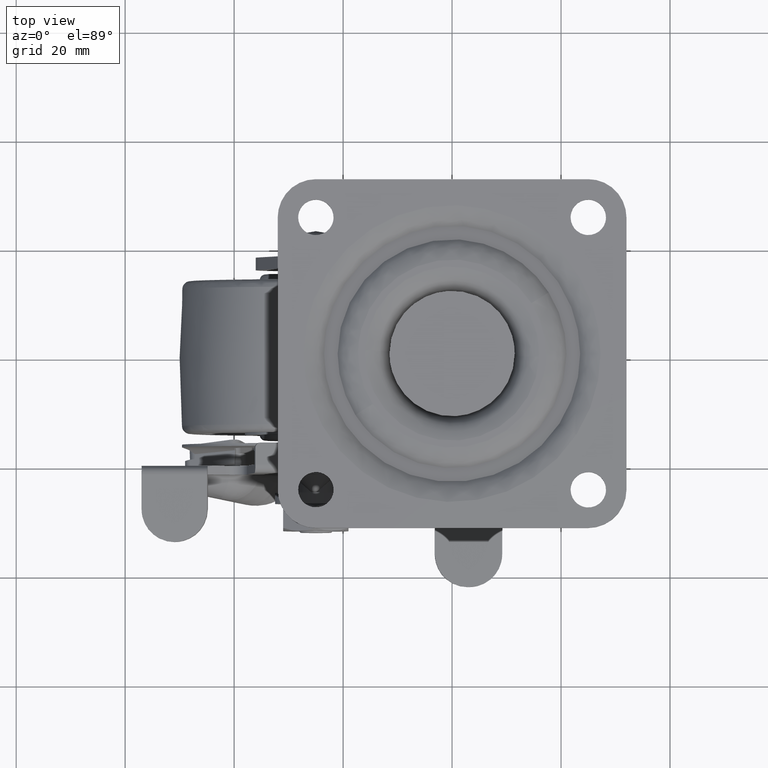
[diagram: clean part render]
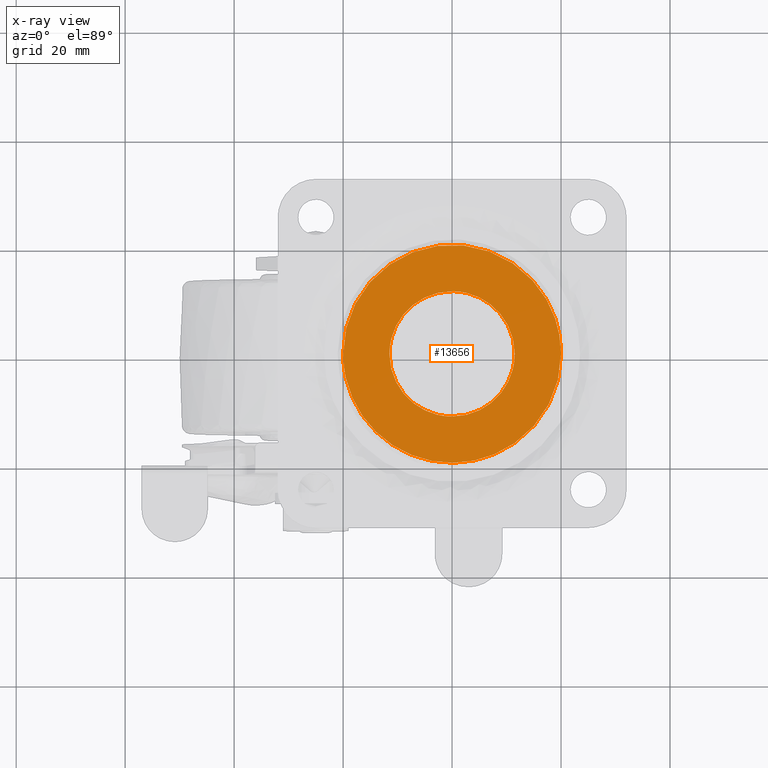
[diagram: x-ray — body ghosted, one internal face saturated and labeled with its STEP entity id]
A machine part, top view, then the same camera in x-ray: the body is ghosted and one INTERNAL B-rep face — a face not visible from any outside direction — is saturated and labeled: STEP entity #13656.
In plain terms, the highlighted face is a freeform B-spline surface patch.
Its self-contained STEP definition (entity closure, byte-faithful):
#13490=CARTESIAN_POINT('',(-21.997999922472239,-21.997565956087030,-4.300000000000096));
#13491=CARTESIAN_POINT('',(21.998000995355849,-21.997565956087030,-4.300000000000096));
#13492=CARTESIAN_POINT('',(-21.997999922472239,21.997567028949462,-4.300000000000096));
#13493=CARTESIAN_POINT('',(21.998000995355849,21.997567028949462,-4.300000000000096));
#13494=B_SPLINE_SURFACE_WITH_KNOTS('',1,1,((#13490,#13492),(#13491,#13493)),.UNSPECIFIED.,.F.,.F.,.U.,(2,2),(2,2),(0.0,43.996000917828077),(0.0,43.995132985036491),.UNSPECIFIED.);
#13495=CARTESIAN_POINT('',(-19.998420893244081,-0.251320798137880,-4.300000000000098));
#13496=VERTEX_POINT('',#13495);
#13497=CARTESIAN_POINT('',(-20.0,0.0,-4.300000000000099));
#13498=VERTEX_POINT('',#13497);
#13499=CARTESIAN_POINT('',(-19.998420893244084,-0.251320798137880,-4.300000000000098));
#13500=CARTESIAN_POINT('',(-20.000000004586109,-0.125665360073231,-4.300000000000098));
#13501=CARTESIAN_POINT('',(-20.0,0.0,-4.300000000000099));
#13509=(BOUNDED_CURVE()B_SPLINE_CURVE(2,(#13499,#13500,#13501),.UNSPECIFIED.,.F.,.U.)B_SPLINE_CURVE_WITH_KNOTS((3,3),(0.997784295918601,1.0),.UNSPECIFIED.)CURVE()GEOMETRIC_REPRESENTATION_ITEM()RATIONAL_B_SPLINE_CURVE((0.994854295636816,0.997404141198644,1.0))REPRESENTATION_ITEM(''));
#13510=EDGE_CURVE('',#13496,#13498,#13509,.T.);
#13511=ORIENTED_EDGE('',*,*,#13510,.F.);
#13512=CARTESIAN_POINT('',(20.0,0.0,-4.300000000000096));
#13513=VERTEX_POINT('',#13512);
#13514=CARTESIAN_POINT('',(20.0,0.0,-4.300000000000096));
#13515=CARTESIAN_POINT('',(20.000064406562739,-1.018546080461916,-4.300000000000090));
#13516=CARTESIAN_POINT('',(19.865866126496851,-2.770454100226258,-4.300000000000100));
#13517=CARTESIAN_POINT('',(19.377628931190419,-5.086176422665742,-4.300000000000090));
#13518=CARTESIAN_POINT('',(18.696283189493400,-7.223407712079969,-4.300000000000097));
#13519=CARTESIAN_POINT('',(17.793749021425199,-9.235311694718879,-4.300000000000113));
#13520=CARTESIAN_POINT('',(16.449412539952760,-11.473706250496379,-4.300000000000057));
#13521=CARTESIAN_POINT('',(14.827097553148670,-13.524820718147090,-4.300000000000147));
#13522=CARTESIAN_POINT('',(12.573313780450279,-15.658349458804620,-4.300000000000117));
#13523=CARTESIAN_POINT('',(10.179994545820620,-17.303275540353209,-4.300000000000004));
#13524=CARTESIAN_POINT('',(7.756915391730505,-18.480831380180959,-4.300000000000141));
#13525=CARTESIAN_POINT('',(5.294789782328656,-19.350063129784260,-4.299999999999899));
#13526=CARTESIAN_POINT('',(2.693126422769938,-19.890741635082200,-4.300000000000544));
#13527=CARTESIAN_POINT('',(0.003169112326414,-20.047470569574550,-4.299999999999403));
#13528=CARTESIAN_POINT('',(-2.807076325400010,-19.876099759787660,-4.300000000000556));
#13529=CARTESIAN_POINT('',(-5.649588595204963,-19.277376066018562,-4.299999999999913));
#13530=CARTESIAN_POINT('',(-8.315566207605206,-18.244526378315761,-4.300000000000094));
#13531=CARTESIAN_POINT('',(-10.653156615246941,-16.992318228206639,-4.300000000000119));
#13532=CARTESIAN_POINT('',(-12.681617302648700,-15.543808340603420,-4.299999999999926));
#13533=CARTESIAN_POINT('',(-14.614253136623891,-13.726670614209050,-4.300000000000122));
#13534=CARTESIAN_POINT('',(-16.390022414220130,-11.592649280098490,-4.300000000000103));
#13535=CARTESIAN_POINT('',(-17.808572289751879,-9.248733861051864,-4.300000000000074));
#13536=CARTESIAN_POINT('',(-18.978683308237560,-6.509440924293753,-4.300000000000140));
#13537=CARTESIAN_POINT('',(-19.763718828818110,-3.630219334985321,-4.300000000000033));
#13538=CARTESIAN_POINT('',(-19.984180564723459,-1.392010153398596,-4.300000000000139));
#13539=CARTESIAN_POINT('',(-19.998420893244081,-0.251320798137880,-4.300000000000098));
#13540=B_SPLINE_CURVE_WITH_KNOTS('',3,(#13514,#13515,#13516,#13517,#13518,#13519,#13520,#13521,#13522,#13523,#13524,#13525,#13526,#13527,#13528,#13529,#13530,#13531,#13532,#13533,#13534,#13535,#13536,#13537,#13538,#13539),.UNSPECIFIED.,.F.,.U.,(4,1,1,1,1,1,1,1,1,1,1,1,1,1,1,1,1,1,1,1,1,1,1,4),(0.000000126482490,3.055631619504624,5.255791589190309,7.089174962929931,9.778196244642366,11.856092701373971,14.911790343124251,17.600809243961258,21.145435546041579,23.590003233297331,25.667881506309509,28.968043031921599,31.534723372027070,33.734810936689641,37.401655208568663,40.212905583265268,42.290797348587802,45.346502086496201,47.668836791231307,50.235634947940092,53.658009127891603,55.858134121498239,59.158296999912757,62.580623053267253),.UNSPECIFIED.);
#13541=EDGE_CURVE('',#13513,#13496,#13540,.T.);
#13542=ORIENTED_EDGE('',*,*,#13541,.F.);
#13543=CARTESIAN_POINT('',(19.998420893244081,0.251320798137881,-4.300000000000098));
#13544=VERTEX_POINT('',#13543);
#13545=CARTESIAN_POINT('',(19.998420893244084,0.251320798137881,-4.300000000000098));
#13546=CARTESIAN_POINT('',(20.000000004586113,0.125665360073231,-4.300000000000098));
#13547=CARTESIAN_POINT('',(20.0,0.0,-4.300000000000096));
#13555=(BOUNDED_CURVE()B_SPLINE_CURVE(2,(#13545,#13546,#13547),.UNSPECIFIED.,.F.,.U.)B_SPLINE_CURVE_WITH_KNOTS((3,3),(0.497784295918601,0.500000000000000),.UNSPECIFIED.)CURVE()GEOMETRIC_REPRESENTATION_ITEM()RATIONAL_B_SPLINE_CURVE((0.994854295636816,0.997404141198644,1.0))REPRESENTATION_ITEM(''));
#13556=EDGE_CURVE('',#13544,#13513,#13555,.T.);
#13557=ORIENTED_EDGE('',*,*,#13556,.F.);
#13558=CARTESIAN_POINT('',(-20.0,0.0,-4.300000000000099));
#13559=CARTESIAN_POINT('',(-20.000007118478660,0.692616584765117,-4.300000000000098));
#13560=CARTESIAN_POINT('',(-19.915290276424820,2.322316734946285,-4.300000000000110));
#13561=CARTESIAN_POINT('',(-19.518939825210531,4.574924620002463,-4.300000000000090));
#13562=CARTESIAN_POINT('',(-18.834782577753298,6.839745164634796,-4.300000000000101));
#13563=CARTESIAN_POINT('',(-17.848829754416741,9.170058018562131,-4.300000000000098));
#13564=CARTESIAN_POINT('',(-16.606961000595060,11.237777546334790,-4.300000000000099));
#13565=CARTESIAN_POINT('',(-15.100972658294189,13.165817614028240,-4.300000000000058));
#13566=CARTESIAN_POINT('',(-13.717375069512331,14.610162536694050,-4.300000000000224));
#13567=CARTESIAN_POINT('',(-11.746699588287330,16.259598075403520,-4.300000000000178));
#13568=CARTESIAN_POINT('',(-9.503058186079844,17.683427417675649,-4.299999999999790));
#13569=CARTESIAN_POINT('',(-7.074870747153543,18.755339837941531,-4.300000000000157));
#13570=CARTESIAN_POINT('',(-4.853355696891527,19.441600296868291,-4.300000000000155));
#13571=CARTESIAN_POINT('',(-2.209698905418782,19.957519073729280,-4.300000000000131));
#13572=CARTESIAN_POINT('',(1.102647817802126,20.089828859259011,-4.299999999999872));
#13573=CARTESIAN_POINT('',(4.582948486135875,19.565316817077690,-4.300000000000227));
#13574=CARTESIAN_POINT('',(7.415963531033254,18.633849224265770,-4.300000000000034));
#13575=CARTESIAN_POINT('',(9.698391852493762,17.542651427983309,-4.300000000000170));
#13576=CARTESIAN_POINT('',(11.667097073485101,16.302670705128349,-4.299999999999965));
#13577=CARTESIAN_POINT('',(13.822896697443310,14.555032585649100,-4.300000000000043));
#13578=CARTESIAN_POINT('',(15.565897794464259,12.657106022355761,-4.300000000000138));
#13579=CARTESIAN_POINT('',(17.104440327631679,10.448258942078411,-4.300000000000092));
#13580=CARTESIAN_POINT('',(18.269124667286359,8.292709261370380,-4.300000000000128));
#13581=CARTESIAN_POINT('',(19.213334228816731,5.767806826226550,-4.300000000000013));
#13582=CARTESIAN_POINT('',(19.828375371625199,3.060601418874432,-4.300000000000160));
#13583=CARTESIAN_POINT('',(19.986188686209779,1.229050843048561,-4.300000000000444));
#13584=CARTESIAN_POINT('',(19.998420893244081,0.251320798137881,-4.300000000000098));
#13585=B_SPLINE_CURVE_WITH_KNOTS('',3,(#13558,#13559,#13560,#13561,#13562,#13563,#13564,#13565,#13566,#13567,#13568,#13569,#13570,#13571,#13572,#13573,#13574,#13575,#13576,#13577,#13578,#13579,#13580,#13581,#13582,#13583,#13584),.UNSPECIFIED.,.F.,.U.,(4,1,1,1,1,1,1,1,1,1,1,1,1,1,1,1,1,1,1,1,1,1,1,1,4),(0.000000126182606,2.077855470508503,4.889093842375864,6.844745551481807,9.167078652990689,12.467220371450310,14.056191927624081,16.500756305172420,18.456411779433349,21.756554686147361,24.445600886578848,26.401214502443320,28.723532341221858,32.512582103573948,36.301650210206859,39.235117137449677,41.435189760051962,43.879771229984947,46.202100529221667,49.746718394714037,51.580130460700133,54.269169579350553,57.080395331203917,59.647209536434957,62.580623053267807),.UNSPECIFIED.);
#13586=EDGE_CURVE('',#13498,#13544,#13585,.T.);
#13587=ORIENTED_EDGE('',*,*,#13586,.F.);
#13588=EDGE_LOOP('',(#13511,#13542,#13557,#13587));
#13589=FACE_OUTER_BOUND('',#13588,.T.);
#13590=CARTESIAN_POINT('',(-11.500000000000000,0.0,-4.300000000000080));
#13591=VERTEX_POINT('',#13590);
#13592=CARTESIAN_POINT('',(-0.100338711077919,-11.499562258746581,-4.299999999999875));
#13593=VERTEX_POINT('',#13592);
#13594=CARTESIAN_POINT('',(-11.500000000000000,0.0,-4.300000000000080));
#13595=CARTESIAN_POINT('',(-11.499999999999948,-11.400095227336953,-4.299999999999977));
#13596=CARTESIAN_POINT('',(-0.100338711077919,-11.499562258746574,-4.299999999999875));
#13604=(BOUNDED_CURVE()B_SPLINE_CURVE(2,(#13594,#13595,#13596),.UNSPECIFIED.,.F.,.U.)B_SPLINE_CURVE_WITH_KNOTS((3,3),(0.500000000000000,0.748460357591833),.UNSPECIFIED.)CURVE()GEOMETRIC_REPRESENTATION_ITEM()RATIONAL_B_SPLINE_CURVE((1.0,0.708910584469547,0.996414611130246))REPRESENTATION_ITEM(''));
#13605=EDGE_CURVE('',#13591,#13593,#13604,.T.);
#13606=ORIENTED_EDGE('',*,*,#13605,.F.);
#13607=CARTESIAN_POINT('',(0.100338711077937,11.499562258746581,-4.299999999999875));
#13608=VERTEX_POINT('',#13607);
#13609=CARTESIAN_POINT('',(0.100338711077937,11.499562258746572,-4.299999999999875));
#13610=CARTESIAN_POINT('',(0.050170310391699,11.499999999988260,-4.299999999999876));
#13611=CARTESIAN_POINT('',(-1.006467E-013,11.499999999988290,-4.299999999999876));
#13612=CARTESIAN_POINT('',(-11.500000000000050,11.499999999994168,-4.299999999999978));
#13613=CARTESIAN_POINT('',(-11.500000000000000,0.0,-4.300000000000080));
#13621=(BOUNDED_CURVE()B_SPLINE_CURVE(2,(#13609,#13610,#13611,#13612,#13613),.UNSPECIFIED.,.F.,.U.)B_SPLINE_CURVE_WITH_KNOTS((3,2,3),(0.248460357591833,0.250000000000000,0.500000000000000),.UNSPECIFIED.)CURVE()GEOMETRIC_REPRESENTATION_ITEM()RATIONAL_B_SPLINE_CURVE((0.996414611130245,0.998196196717001,1.0,0.707106781186548,1.0))REPRESENTATION_ITEM(''));
#13622=EDGE_CURVE('',#13608,#13591,#13621,.T.);
#13623=ORIENTED_EDGE('',*,*,#13622,.F.);
#13624=CARTESIAN_POINT('',(11.500000000000000,0.0,-4.300000000000080));
#13625=VERTEX_POINT('',#13624);
#13626=CARTESIAN_POINT('',(11.500000000000000,0.0,-4.300000000000080));
#13627=CARTESIAN_POINT('',(11.499999999999950,11.400095227336935,-4.299999999999977));
#13628=CARTESIAN_POINT('',(0.100338711077937,11.499562258746572,-4.299999999999875));
#13636=(BOUNDED_CURVE()B_SPLINE_CURVE(2,(#13626,#13627,#13628),.UNSPECIFIED.,.F.,.U.)B_SPLINE_CURVE_WITH_KNOTS((3,3),(0.0,0.248460357591833),.UNSPECIFIED.)CURVE()GEOMETRIC_REPRESENTATION_ITEM()RATIONAL_B_SPLINE_CURVE((1.0,0.708910584469547,0.996414611130245))REPRESENTATION_ITEM(''));
#13637=EDGE_CURVE('',#13625,#13608,#13636,.T.);
#13638=ORIENTED_EDGE('',*,*,#13637,.F.);
#13639=CARTESIAN_POINT('',(-0.100338711077919,-11.499562258746574,-4.299999999999875));
#13640=CARTESIAN_POINT('',(-0.050170310391691,-11.499999999988257,-4.299999999999876));
#13641=CARTESIAN_POINT('',(9.949987E-014,-11.499999999988290,-4.299999999999876));
#13642=CARTESIAN_POINT('',(11.500000000000050,-11.499999999994168,-4.299999999999978));
#13643=CARTESIAN_POINT('',(11.500000000000000,0.0,-4.300000000000080));
#13651=(BOUNDED_CURVE()B_SPLINE_CURVE(2,(#13639,#13640,#13641,#13642,#13643),.UNSPECIFIED.,.F.,.U.)B_SPLINE_CURVE_WITH_KNOTS((3,2,3),(0.748460357591833,0.750000000000000,1.0),.UNSPECIFIED.)CURVE()GEOMETRIC_REPRESENTATION_ITEM()RATIONAL_B_SPLINE_CURVE((0.996414611130246,0.998196196717001,1.0,0.707106781186548,1.0))REPRESENTATION_ITEM(''));
#13652=EDGE_CURVE('',#13593,#13625,#13651,.T.);
#13653=ORIENTED_EDGE('',*,*,#13652,.F.);
#13654=EDGE_LOOP('',(#13606,#13623,#13638,#13653));
#13655=FACE_BOUND('',#13654,.T.);
#13656=ADVANCED_FACE('',(#13589,#13655),#13494,.T.);